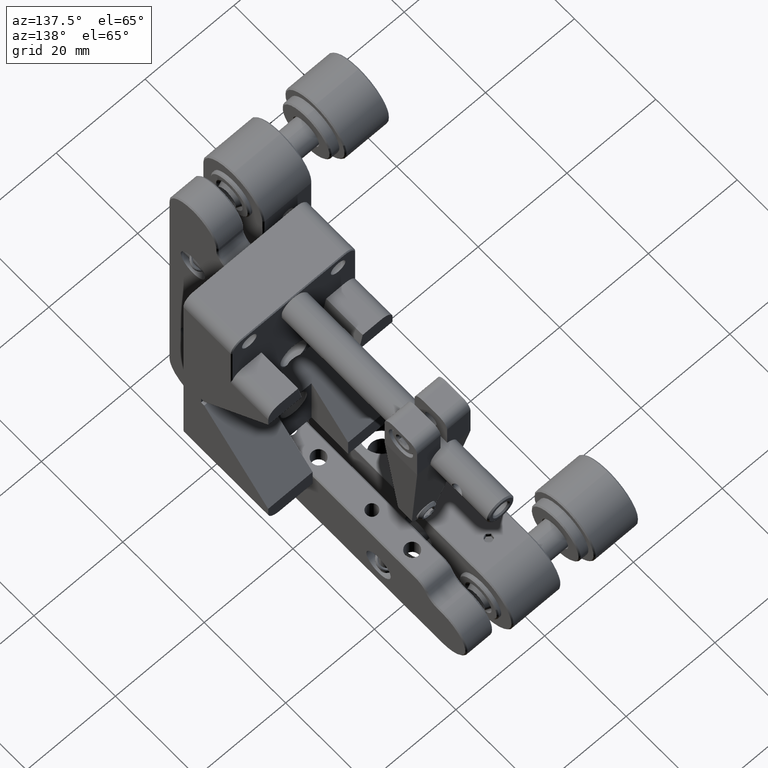
[diagram: clean part render]
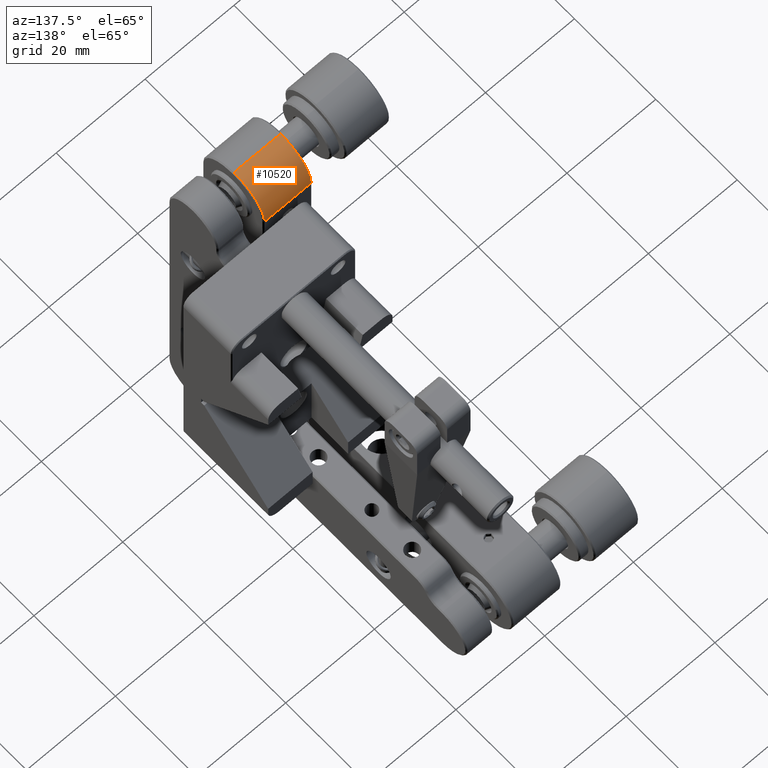
[diagram: same view with one face highlighted and labeled with its STEP entity id]
A machine part, auxiliary view. The second image highlights one B-rep face of the part: STEP entity #10520.
In plain terms, the highlighted cylindrical surface (partial cylindrical patch) has radius 7.5 mm, axis along (-1, -0, 0).
Its self-contained STEP definition (entity closure, byte-faithful):
#209 = CARTESIAN_POINT ( 'NONE',  ( -5.249999999999987566, -30.60000000000000142, 30.60000000000000142 ) ) ;
#2292 = CARTESIAN_POINT ( 'NONE',  ( 0.000000000000000000, -23.10000000000000142, 30.60000000000003695 ) ) ;
#3328 = CIRCLE ( 'NONE', #16317, 7.500000000000007105 ) ;
#3382 = EDGE_CURVE ( 'NONE', #6258, #34111, #28189, .T. ) ;
#3809 = DIRECTION ( 'NONE',  ( 0.000000000000000000, 1.000000000000000000, 0.000000000000000000 ) ) ;
#6258 = VERTEX_POINT ( 'NONE', #27921 ) ;
#7130 = CIRCLE ( 'NONE', #23197, 7.500000000000000000 ) ;
#8766 = VECTOR ( 'NONE', #20539, 1000.000000000000000 ) ;
#8932 = CARTESIAN_POINT ( 'NONE',  ( 5.249999999999995559, -23.10000000000000142, 30.60000000000000853 ) ) ;
#9944 = CARTESIAN_POINT ( 'NONE',  ( 6.301200000000001467, -30.60000000000000142, 38.10000000000000142 ) ) ;
#10520 = ADVANCED_FACE ( 'NONE', ( #38509 ), #27484, .T. ) ;
#12850 = LINE ( 'NONE', #2292, #8766 ) ;
#13605 = VERTEX_POINT ( 'NONE', #26154 ) ;
#16222 = AXIS2_PLACEMENT_3D ( 'NONE', #30847, #41642, #42118 ) ;
#16317 = AXIS2_PLACEMENT_3D ( 'NONE', #24682, #31630, #16751 ) ;
#16751 = DIRECTION ( 'NONE',  ( 1.156482317317870246E-16, 0.000000000000000000, -1.000000000000000000 ) ) ;
#16910 = ORIENTED_EDGE ( 'NONE', *, *, #29824, .T. ) ;
#17085 = ORIENTED_EDGE ( 'NONE', *, *, #3382, .F. ) ;
#18916 = DIRECTION ( 'NONE',  ( 1.000000000000000000, 0.000000000000000000, 0.000000000000000000 ) ) ;
#19444 = VECTOR ( 'NONE', #28431, 1000.000000000000000 ) ;
#20539 = DIRECTION ( 'NONE',  ( -1.000000000000000000, -0.000000000000000000, -0.000000000000000000 ) ) ;
#23197 = AXIS2_PLACEMENT_3D ( 'NONE', #209, #18916, #3809 ) ;
#24682 = CARTESIAN_POINT ( 'NONE',  ( 5.249999999999999112, -30.60000000000000142, 30.60000000000000853 ) ) ;
#26154 = CARTESIAN_POINT ( 'NONE',  ( -5.249999999999992895, -23.10000000000000853, 30.60000000000002274 ) ) ;
#27484 = CYLINDRICAL_SURFACE ( 'NONE', #16222, 7.500000000000000000 ) ;
#27921 = CARTESIAN_POINT ( 'NONE',  ( 5.249999999999998224, -30.60000000000000142, 38.10000000000000142 ) ) ;
#28189 = LINE ( 'NONE', #9944, #19444 ) ;
#28431 = DIRECTION ( 'NONE',  ( -1.000000000000000000, -1.156482317317871232E-16, 1.156482317317871232E-16 ) ) ;
#29824 = EDGE_CURVE ( 'NONE', #39941, #13605, #12850, .T. ) ;
#30043 = ORIENTED_EDGE ( 'NONE', *, *, #32466, .F. ) ;
#30405 = EDGE_LOOP ( 'NONE', ( #17085, #30043, #16910, #32947 ) ) ;
#30847 = CARTESIAN_POINT ( 'NONE',  ( 6.301200000000000578, -30.60000000000000142, 30.60000000000000142 ) ) ;
#31630 = DIRECTION ( 'NONE',  ( 1.000000000000000000, 1.156482317317871232E-16, 1.156482317317872465E-16 ) ) ;
#32466 = EDGE_CURVE ( 'NONE', #39941, #6258, #3328, .T. ) ;
#32947 = ORIENTED_EDGE ( 'NONE', *, *, #40264, .T. ) ;
#34111 = VERTEX_POINT ( 'NONE', #35645 ) ;
#35645 = CARTESIAN_POINT ( 'NONE',  ( -5.249999999999987566, -30.60000000000000142, 38.10000000000000142 ) ) ;
#38509 = FACE_OUTER_BOUND ( 'NONE', #30405, .T. ) ;
#39941 = VERTEX_POINT ( 'NONE', #8932 ) ;
#40264 = EDGE_CURVE ( 'NONE', #13605, #34111, #7130, .T. ) ;
#41642 = DIRECTION ( 'NONE',  ( -1.000000000000000000, -1.156482317317871232E-16, 1.156482317317871232E-16 ) ) ;
#42118 = DIRECTION ( 'NONE',  ( 1.156482317317871478E-16, 0.000000000000000000, 1.000000000000000000 ) ) ;